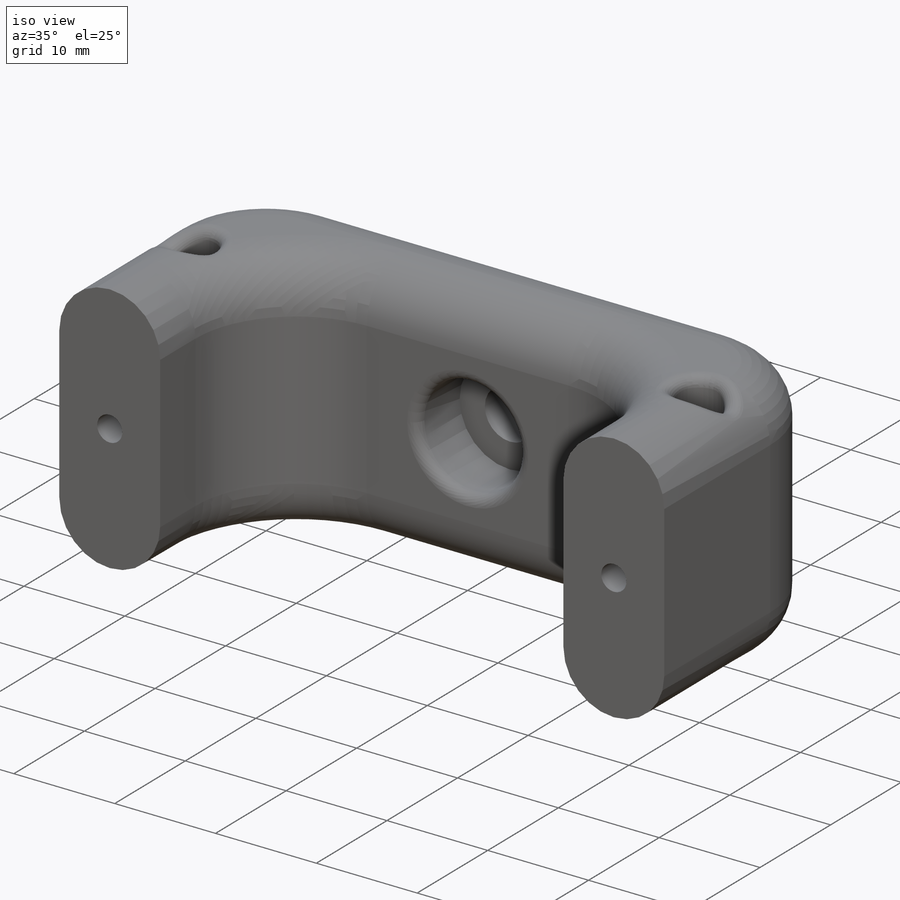
[diagram: iso view]
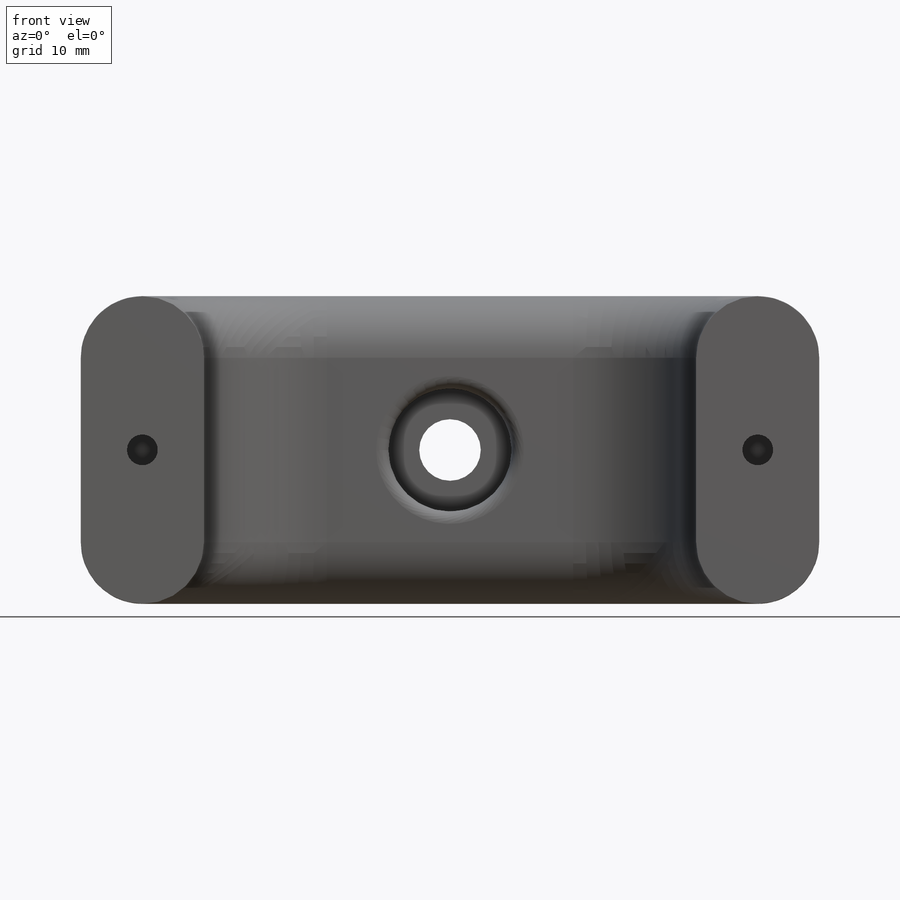
[diagram: front view]
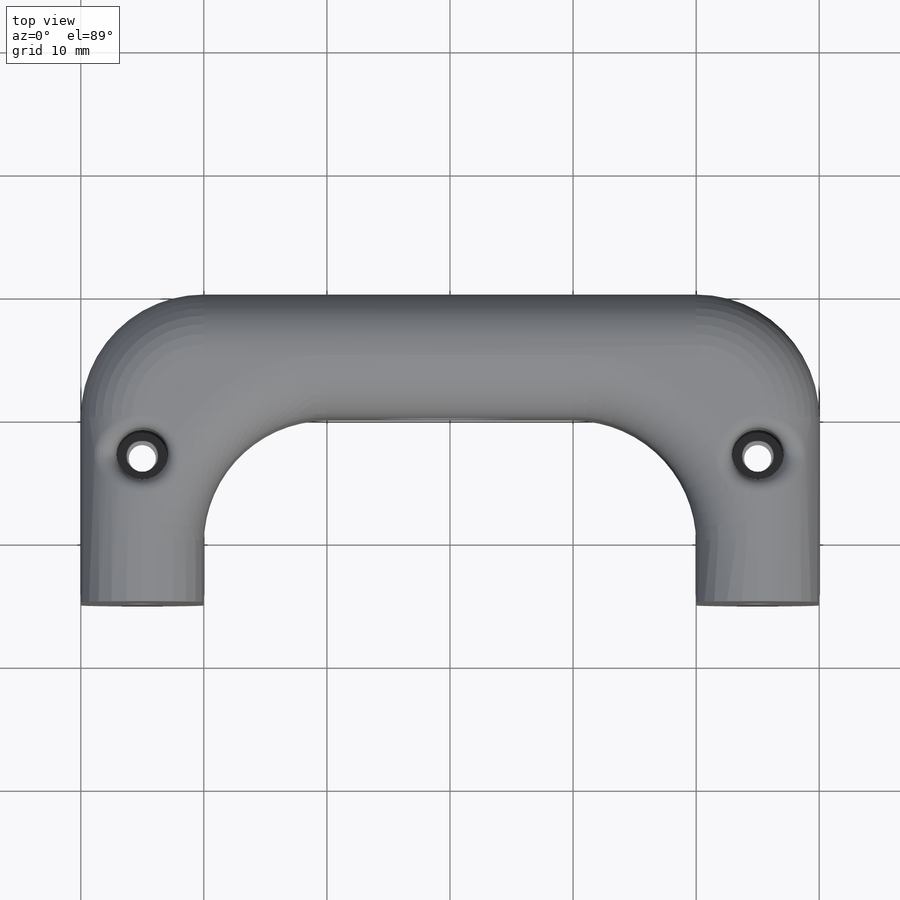
[diagram: top view]
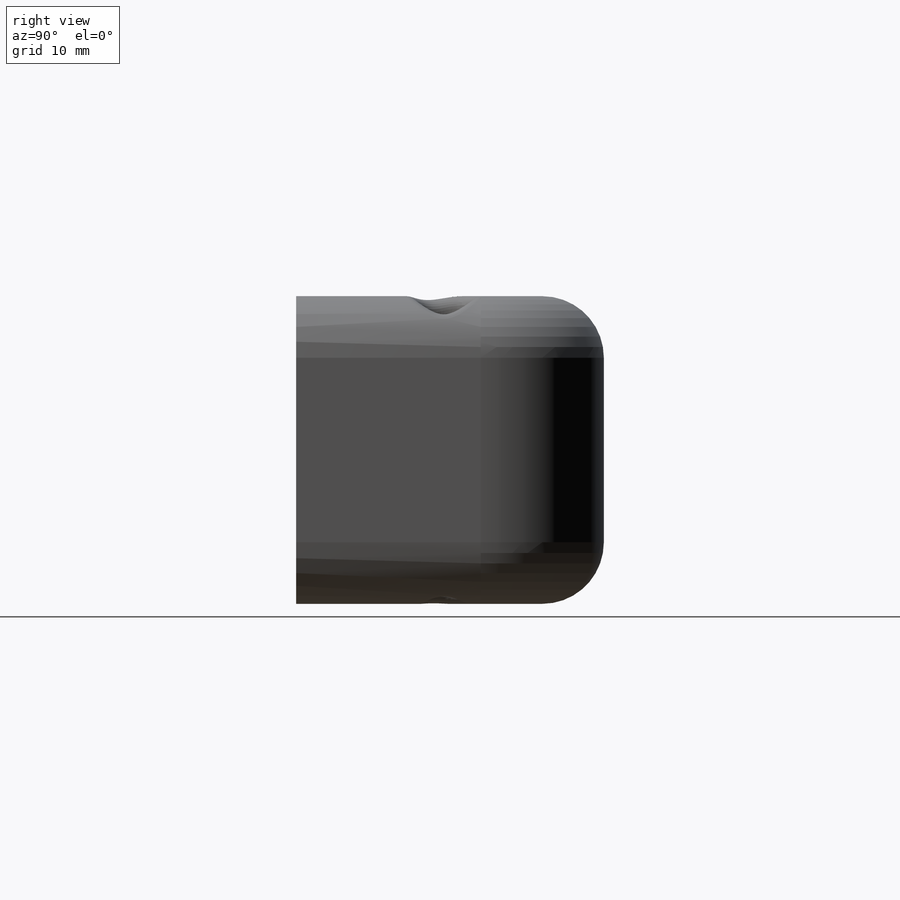
[diagram: right view]
SOLIDWORKS PART (.sldprt)
format: sldprt  version: not decoded by parser v0  size: 498,688 bytes
history: native  units: mm
features: sketch x7, cut_extrude x6, fillet x5, plane x3, material x1, extrude x1 (+9 scaffold rows collapsed)
feature tree (32):
  scaffold x9  (default folders/planes/origin — collapsed)
  material  "Materiale <non specificato>"
  plane  "Piano frontale"
  plane  "Piano superiore"
  plane  "Piano destro"
  sketch  "Schizzo1"  dims[D1=60.0mm D2=25.0mm]
  extrude  "Estrusione-Estrusione1"  Depth=25mm
  sketch  "Schizzo3"  dims[D1=5.0mm]
  cut_extrude  "Taglio-Estrusione1"  Depth=30mm
  sketch  "Schizzo4"  dims[D3=2.5mm D1=5.0mm D2=12.5mm]
  cut_extrude  "Taglio-Estrusione2"  Depth=6mm
  sketch  "Schizzo5"  dims[D1=13.0mm D2=13.0mm]
  cut_extrude  "Taglio-Estrusione3"  Depth=60mm
  sketch  "Schizzo6"  dims[D1=4.2mm D2=4.2mm]
  cut_extrude  "Taglio-Estrusione4"  Depth=23mm
  sketch  "Schizzo9"  dims[D1=5.0mm]
  cut_extrude  "Taglio-Estrusione7"  Depth=20mm
  sketch  "Schizzo10"  dims[D1=10.0mm]
  cut_extrude  "Taglio-Estrusione8"  Depth=6mm
  fillet  "Raccordo1"  Radius=10mm
  fillet  "Raccordo2"  Radius=10mm
  fillet  "Raccordo3"  Radius=5mm
  fillet  "Raccordo4"  Radius=1mm
  fillet  "Raccordo5"  Radius=1mm
decode coverage: 19 of 19 modeling features carry decoded parameters
note: suppression state not decoded; provenance and decode notes live in map.json
